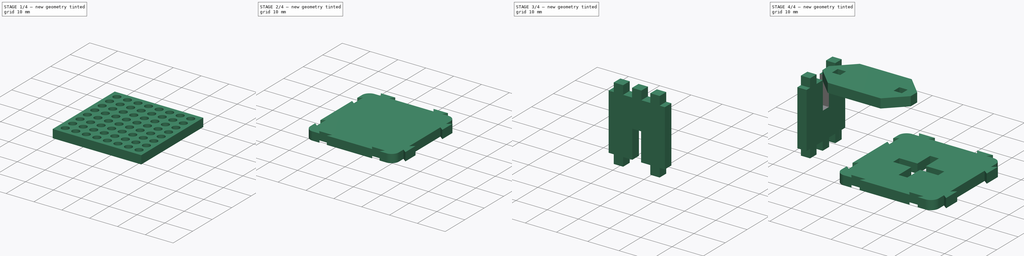
[diagram: build sequence overview — one tinted view per stage of 4, left to right]
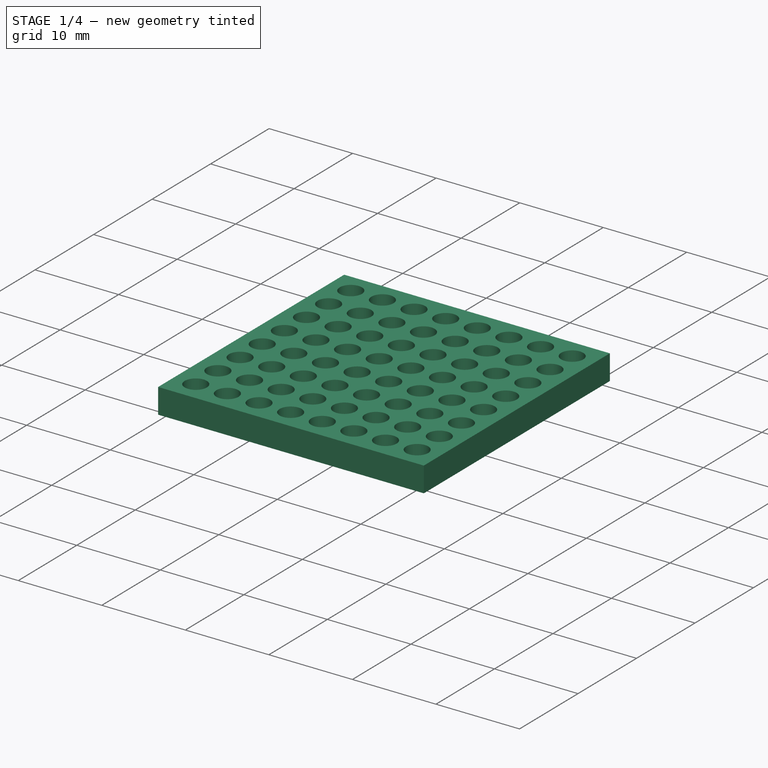
[diagram: stage 1 of 4 — iso view after this stage's code; geometry added in this stage tinted green]
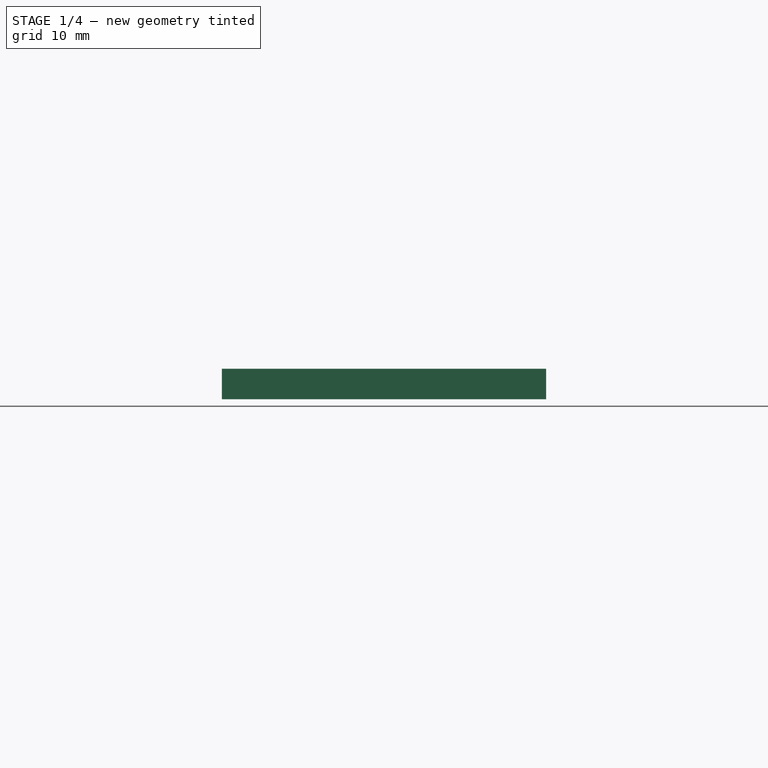
[diagram: stage 1 of 4 — front view after this stage's code; geometry added in this stage tinted green]
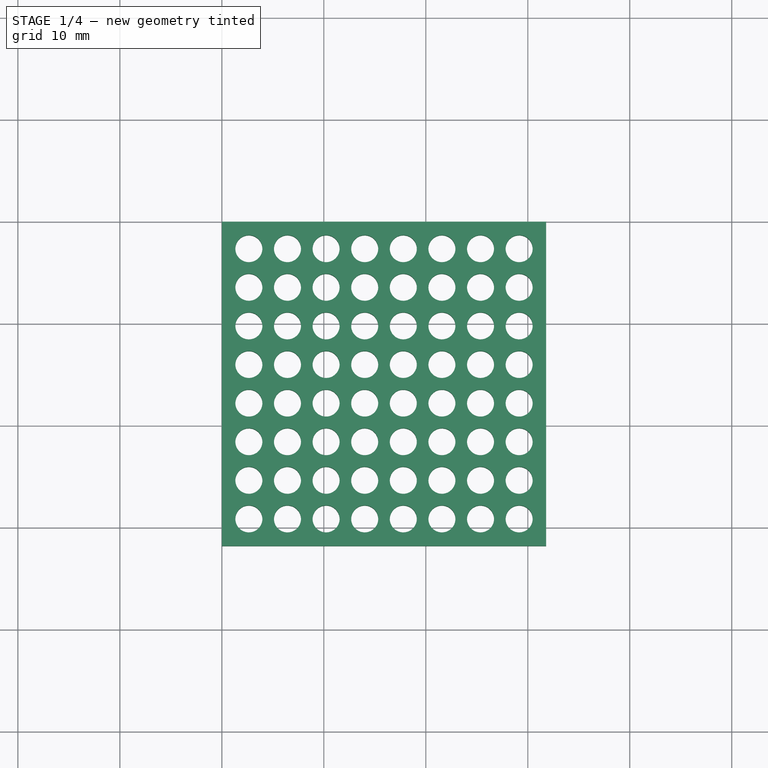
[diagram: stage 1 of 4 — top view after this stage's code; geometry added in this stage tinted green]
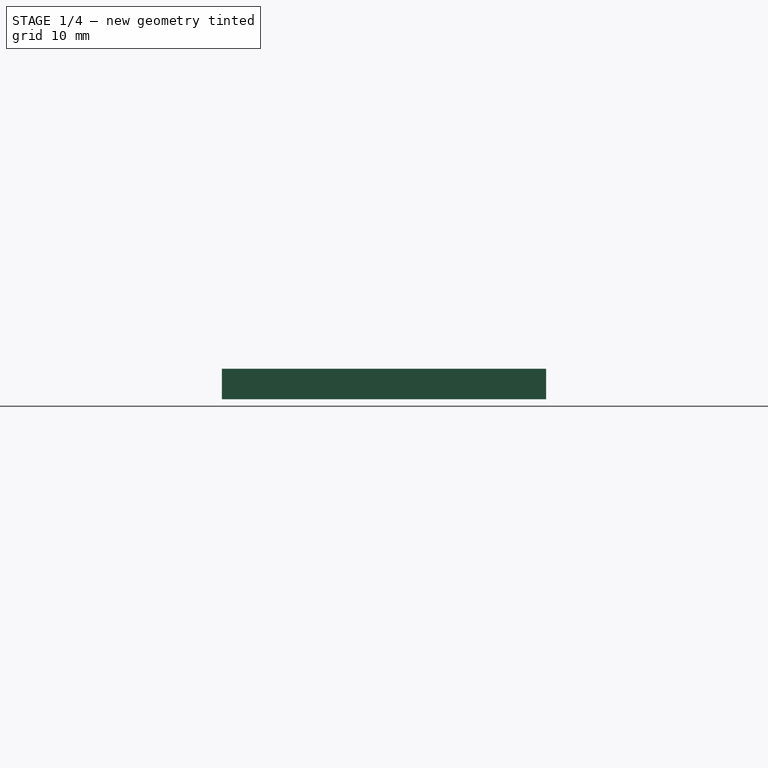
[diagram: stage 1 of 4 — right view after this stage's code; geometry added in this stage tinted green]
FCSTD DOCUMENT  (FreeCAD 2022.709R28846 (Git))
Label: modular_stamp_base_v3
License: Other
LicenseURL: https://ohwr.org/project/cernohl/wikis/Documents/CERN-OHL-version-2
objects: Sketcher::SketchObject×6, PartDesign::SubShapeBinder×5, PartDesign::Pad×4, PartDesign::Body×4, Part::Part2DObjectPython×4, PartDesign::Pocket×2, PartDesign::LinearPattern×2, PartDesign::Fillet×2, Part::FeaturePython×2, PartDesign::MultiTransform×1, Spreadsheet::Sheet×1
note: 54 computed .brp shape members not serialized (recipe doc carries the construction recipe); baked Part::Feature solids carry a one-line shape summary decoded from their .brp

FEATURE [Sketcher::SketchObject] Sketch
  ArcFitTolerance = 0
  AttachmentSupport = -> [XY_Plane]
  FullyConstrained = true
  MapMode = 5
  Support = -> [XY_Plane]
  TreeRank = 0
  expr: Constraints[10] = Spreadsheet.stamp_size
  sketch-geometry (4):
    g0: LineSegment StartX=0 StartY=0 StartZ=0 EndX=31.8 EndY=0 EndZ=0
    g1: LineSegment StartX=31.8 StartY=0 StartZ=0 EndX=31.8 EndY=-31.8 EndZ=0
    g2: LineSegment StartX=31.8 StartY=-31.8 StartZ=0 EndX=0 EndY=-31.8 EndZ=0
    g3: LineSegment StartX=0 StartY=-31.8 StartZ=0 EndX=0 EndY=0 EndZ=0
  constraints (11):
    c: Coincident(g0,g1)
    c: Coincident(g1,g2)
    c: Coincident(g2,g3)
    c: Coincident(g3,g0)
    c: Horizontal(g0)
    c: Horizontal(g2)
    c: Vertical(g1)
    c: Vertical(g3)
    c: Equal(g0,g3)
    c: Coincident(g0,g-1)
    c: DistanceX(g0,g0) = 31.8
FEATURE [PartDesign::Pad] Pad
  ClaimChildren = false
  Direction = (1,1,1)
  Fit = 0
  FitJoin = 0
  InnerFit = 0
  InnerFitJoin = 0
  InnerTaperAngle = 0
  InnerTaperAngleRev = 0
  Length = 3
  Length2 = 100
  NewSolid = false
  Profile = -> Sketch
  Suppress = false
  TreeRank = 0
  Type = 0
  _ProfileBasedVersion = 0
FEATURE [Sketcher::SketchObject] Sketch001
  ArcFitTolerance = 0
  AttachmentSupport = -> [Pad]
  FullyConstrained = true
  MapMode = 5
  Placement = pos=(0,0,3) rot=(0,0,1;0rad)
  Support = -> [Pad]
  TreeRank = 0
  expr: Constraints[17] = Spreadsheet.hole_dia / 2
  expr: Constraints[9] = Spreadsheet.hole_dia
  sketch-geometry (7):
    g0: LineSegment [constr] StartX=1.325 StartY=-1.325 StartZ=0 EndX=3.975 EndY=-1.325 EndZ=0
    g1: LineSegment [constr] StartX=3.975 StartY=-1.325 StartZ=0 EndX=3.975 EndY=-3.975 EndZ=0
    g2: LineSegment [constr] StartX=3.975 StartY=-3.975 StartZ=0 EndX=1.325 EndY=-3.975 EndZ=0
    g3: LineSegment [constr] StartX=1.325 StartY=-3.975 StartZ=0 EndX=1.325 EndY=-1.325 EndZ=0
    g4: LineSegment [constr] StartX=1.325 StartY=-1.325 StartZ=0 EndX=0 EndY=-1.325 EndZ=0
    g5: LineSegment [constr] StartX=1.325 StartY=-1.325 StartZ=0 EndX=1.325 EndY=0 EndZ=0
    g6: Circle CenterX=2.65 CenterY=-2.65 CenterZ=0 NormalX=0 NormalY=0 NormalZ=1 AngleXU=0 Radius=1.325
  constraints (21):
    c: Coincident(g0,g1)
    c: Coincident(g1,g2)
    c: Coincident(g2,g3)
    c: Coincident(g3,g0)
    c: Horizontal(g0)
    c: Horizontal(g2)
    c: Vertical(g1)
    c: Vertical(g3)
    c: Equal(g3,g0)
    c: DistanceX(g0,g0) = 2.65
    c: Coincident(g4,g0)
    c: PointOnObject(g4,g-2)
    c: Horizontal(g4)
    c: Coincident(g5,g0)
    c: PointOnObject(g5,g-1)
    c: Vertical(g5)
    c: Equal(g5,g4)
    c: DistanceX(g4,g4) = 1.325
    c: Tangent(g6,g3)
    c: Tangent(g6,g2)
    c: Tangent(g6,g1)
FEATURE [PartDesign::Pocket] Pocket
  BaseFeature = -> Pad
  ClaimChildren = false
  Fit = 0
  FitJoin = 0
  InnerFit = 0
  InnerFitJoin = 0
  InnerTaperAngle = 0
  InnerTaperAngleRev = 0
  Length = 5
  Length2 = 100
  NewSolid = false
  Profile = -> Sketch001
  Suppress = false
  TreeRank = 0
  Type = 1
  _ProfileBasedVersion = 0
FEATURE [PartDesign::LinearPattern] LinearPattern
  CopyShape = true
  Direction = -> Sketch001 [H_Axis]
  Length = 26.5
  NewSolid = false
  Occurrences = 8
  ParallelTransform = true
  SubTransform = true
  Suppress = false
  TreeRank = 0
  expr: Length = Spreadsheet.number_of_occurrences
FEATURE [PartDesign::LinearPattern] LinearPattern001
  CopyShape = true
  Direction = -> Sketch001 [V_Axis]
  Length = 26.5
  NewSolid = false
  Occurrences = 8
  ParallelTransform = true
  Reversed = true
  SubTransform = true
  Suppress = false
  TreeRank = 0
  expr: Length = Spreadsheet.number_of_occurrences
FEATURE [PartDesign::MultiTransform] MultiTransform
  BaseFeature = -> Pocket
  CopyShape = true
  NewSolid = false
  OriginalSubs = -> [Pocket]
  Originals = -> [Pocket]
  ParallelTransform = true
  SubTransform = true
  Suppress = false
  Transformations = -> [LinearPattern,LinearPattern001]
  TreeRank = 0
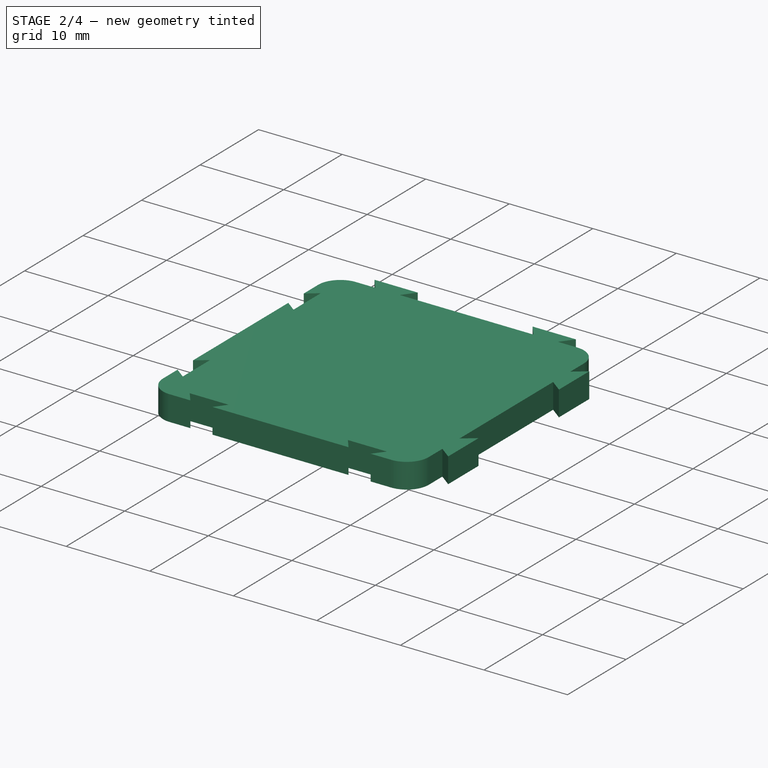
[diagram: stage 2 of 4 — iso view after this stage's code; geometry added in this stage tinted green]
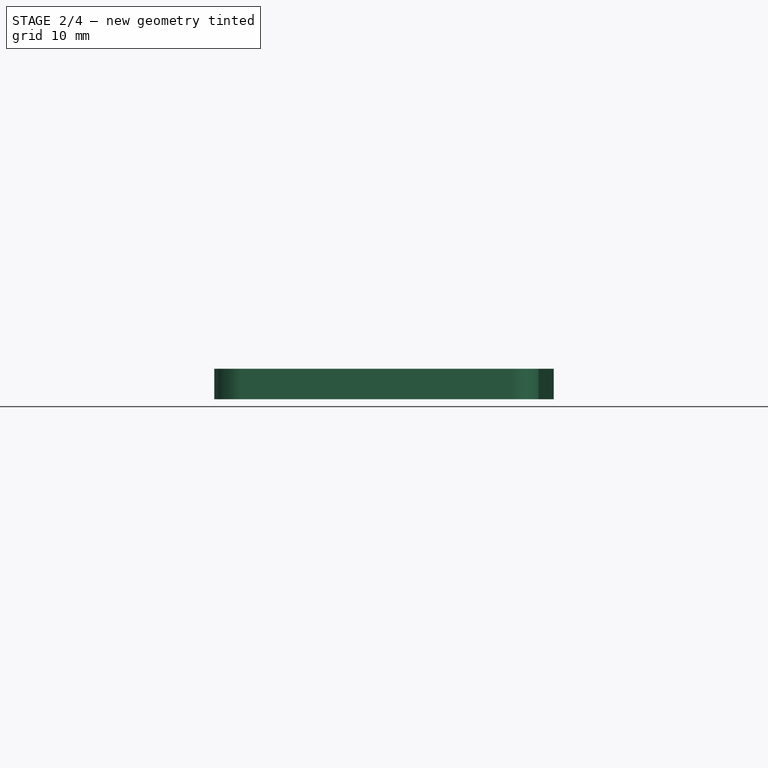
[diagram: stage 2 of 4 — front view after this stage's code; geometry added in this stage tinted green]
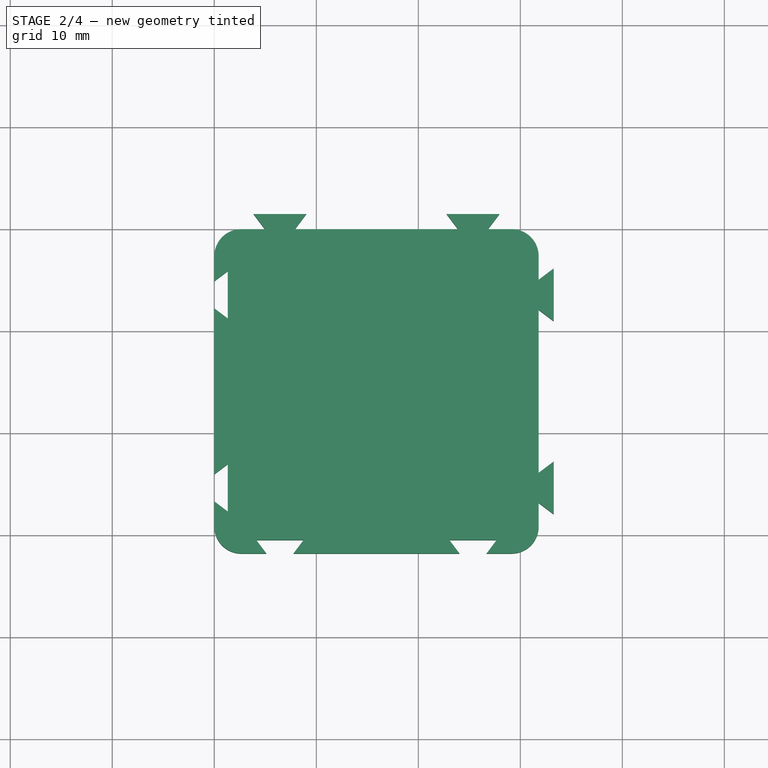
[diagram: stage 2 of 4 — top view after this stage's code; geometry added in this stage tinted green]
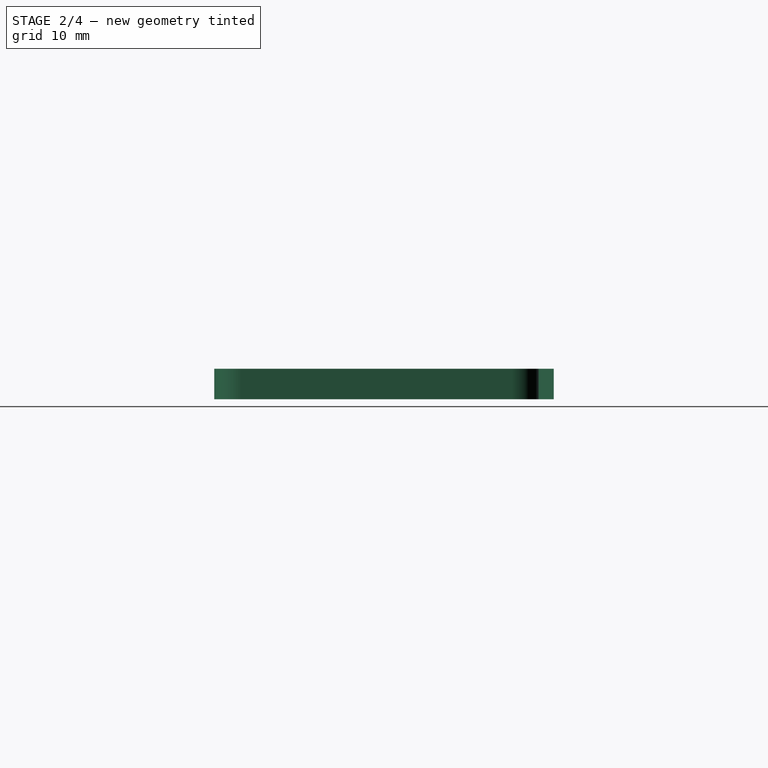
[diagram: stage 2 of 4 — right view after this stage's code; geometry added in this stage tinted green]
FEATURE [Spreadsheet::Sheet] Spreadsheet
  PythonMode = false
  ShowCells = 0
  TreeRank = 0
  cells = A1=hole diameter; B1(hole_dia)==2.65mm; A2=number of pixel columns; B2(pixel_col)=8; A3=number of pixel rows; B3(pixel_row)=8; A4=stamp_size; B4(stamp_size)==B1 * B2 + B1 * B2 / 2; A5=number_of_occurrences; B5(number_of_occurrences)==B4 - B1 * 2; A6=laser_kerf; B6(laser_kerf)==0.15mm; A7=acrylic_thickness; B7(acrylic_thickness)==3mm; A8=slot_width; B8(slot_width)==B7 - B6
FEATURE [PartDesign::SubShapeBinder] Binder
  BindCopyOnChange = 0
  BindMode = 0
  ClaimChildren = false
  Context = -> Body001 [Binder.]
  FillStyle = 0
  Fuse = false
  MakeFace = true
  OffsetFill = false
  OffsetIntersection = false
  OffsetJoinType = 0
  OffsetOpenResult = false
  PartialLoad = false
  Refine = true
  Relative = true
  Support = -> [Body]
  TreeRank = 0
  _Version = 2
FEATURE [Sketcher::SketchObject] Sketch002
  ArcFitTolerance = 0
  AttachmentSupport = -> [Binder]
  ExternalGeometry = -> [Binder]
  FullyConstrained = true
  MapMode = 5
  Placement = pos=(0,0,3) rot=(0,0,1;0rad)
  Support = -> [Binder]
  TreeRank = 0
  expr: Constraints[121] = Spreadsheet.hole_dia / 2 + Spreadsheet.laser_kerf
  expr: Constraints[124] = Spreadsheet.hole_dia / 2 + Spreadsheet.laser_kerf
  expr: Constraints[46] = Spreadsheet.hole_dia + 2mm
  expr: Constraints[47] = Spreadsheet.hole_dia
  expr: Constraints[48] = Spreadsheet.hole_dia / 2
  expr: Constraints[90] = Spreadsheet.hole_dia + Spreadsheet.laser_kerf * 2
  sketch-geometry (44):
    g0: LineSegment StartX=31.8 StartY=-31.8 StartZ=0 EndX=26.6893 EndY=-31.8 EndZ=0
    g1: LineSegment StartX=26.6893 StartY=-31.8 StartZ=0 EndX=27.6893 EndY=-30.475 EndZ=0
    g2: LineSegment StartX=27.6893 StartY=-30.475 StartZ=0 EndX=23.0393 EndY=-30.475 EndZ=0
    g3: LineSegment StartX=23.0393 StartY=-30.475 StartZ=0 EndX=24.0393 EndY=-31.8 EndZ=0
    g4: LineSegment StartX=24.0393 StartY=-31.8 StartZ=0 EndX=7.76071 EndY=-31.8 EndZ=0
    g5: LineSegment StartX=7.76071 StartY=-31.8 StartZ=0 EndX=8.76071 EndY=-30.475 EndZ=0
    g6: LineSegment StartX=8.76071 StartY=-30.475 StartZ=0 EndX=4.11071 EndY=-30.475 EndZ=0
    g7: LineSegment StartX=4.11071 StartY=-30.475 StartZ=0 EndX=5.11071 EndY=-31.8 EndZ=0
    g8: LineSegment StartX=5.11071 StartY=-31.8 StartZ=0 EndX=0 EndY=-31.8 EndZ=0
    g9: LineSegment StartX=0 StartY=-31.8 StartZ=0 EndX=0 EndY=-26.6893 EndZ=0
    g10: LineSegment StartX=0 StartY=-26.6893 StartZ=0 EndX=1.325 EndY=-27.6893 EndZ=0
    g11: LineSegment StartX=1.325 StartY=-27.6893 StartZ=0 EndX=1.325 EndY=-23.0393 EndZ=0
    g12: LineSegment StartX=1.325 StartY=-23.0393 StartZ=0 EndX=0 EndY=-24.0393 EndZ=0
    g13: LineSegment StartX=0 StartY=-24.0393 StartZ=0 EndX=0 EndY=-7.76071 EndZ=0
    g14: LineSegment StartX=0 StartY=-7.76071 StartZ=0 EndX=1.325 EndY=-8.76071 EndZ=0
    g15: LineSegment StartX=1.325 StartY=-8.76071 StartZ=0 EndX=1.325 EndY=-4.11071 EndZ=0
    g16: LineSegment StartX=1.325 StartY=-4.11071 StartZ=0 EndX=0 EndY=-5.11071 EndZ=0
    g17: LineSegment StartX=0 StartY=-5.11071 StartZ=0 EndX=0 EndY=0 EndZ=0
    g18: LineSegment [constr] StartX=2.65 StartY=-6.43571 StartZ=0 EndX=0 EndY=-6.43571 EndZ=0
    g19: LineSegment [constr] StartX=2.65 StartY=-25.3643 StartZ=0 EndX=0 EndY=-25.3643 EndZ=0
    g20: LineSegment [constr] StartX=6.43571 StartY=-29.15 StartZ=0 EndX=6.43571 EndY=-31.8 EndZ=0
    g21: LineSegment [constr] StartX=6.43571 StartY=-2.65 StartZ=0 EndX=6.43571 EndY=0 EndZ=0
    g22: LineSegment [constr] StartX=25.3643 StartY=-2.65 StartZ=0 EndX=25.3643 EndY=0 EndZ=0
    g23: LineSegment [constr] StartX=29.15 StartY=-6.43571 StartZ=0 EndX=31.8 EndY=-6.43571 EndZ=0
    g24: LineSegment [constr] StartX=29.15 StartY=-25.3643 StartZ=0 EndX=31.8 EndY=-25.3643 EndZ=0
    g25: LineSegment [constr] StartX=25.3643 StartY=-29.15 StartZ=0 EndX=25.3643 EndY=-31.8 EndZ=0
    g26: LineSegment StartX=0 StartY=0 StartZ=0 EndX=4.96071 EndY=0 EndZ=0
    g27: LineSegment StartX=4.96071 StartY=0 StartZ=0 EndX=3.84751 EndY=1.475 EndZ=0
    g28: LineSegment StartX=3.84751 StartY=1.475 StartZ=0 EndX=9.02392 EndY=1.475 EndZ=0
    g29: LineSegment StartX=9.02392 StartY=1.475 StartZ=0 EndX=7.91071 EndY=0 EndZ=0
    g30: LineSegment StartX=7.91071 StartY=0 StartZ=0 EndX=23.8893 EndY=0 EndZ=0
    g31: LineSegment StartX=23.8893 StartY=0 StartZ=0 EndX=22.7761 EndY=1.475 EndZ=0
    g32: LineSegment StartX=22.7761 StartY=1.475 StartZ=0 EndX=27.9525 EndY=1.475 EndZ=0
    g33: LineSegment StartX=27.9525 StartY=1.475 StartZ=0 EndX=26.8393 EndY=0 EndZ=0
    g34: LineSegment StartX=26.8393 StartY=0 StartZ=0 EndX=31.8 EndY=0 EndZ=0
    g35: LineSegment StartX=31.8 StartY=0 StartZ=0 EndX=31.8 EndY=-4.96071 EndZ=0
    g36: LineSegment StartX=31.8 StartY=-4.96071 StartZ=0 EndX=33.275 EndY=-3.84751 EndZ=0
    g37: LineSegment StartX=33.275 StartY=-3.84751 StartZ=0 EndX=33.275 EndY=-9.02392 EndZ=0
    g38: LineSegment StartX=33.275 StartY=-9.02392 StartZ=0 EndX=31.8 EndY=-7.91071 EndZ=0
    g39: LineSegment StartX=31.8 StartY=-7.91071 StartZ=0 EndX=31.8 EndY=-23.8893 EndZ=0
    g40: LineSegment StartX=31.8 StartY=-23.8893 StartZ=0 EndX=33.275 EndY=-22.7761 EndZ=0
    g41: LineSegment StartX=33.275 StartY=-22.7761 StartZ=0 EndX=33.275 EndY=-27.9525 EndZ=0
    g42: LineSegment StartX=33.275 StartY=-27.9525 StartZ=0 EndX=31.8 EndY=-26.8393 EndZ=0
    g43: LineSegment StartX=31.8 StartY=-26.8393 StartZ=0 EndX=31.8 EndY=-31.8 EndZ=0
  constraints (125):
    c: Coincident(g0,g1)
    c: Coincident(g1,g2)
    c: Horizontal(g2)
    c: Coincident(g2,g3)
    c: Coincident(g3,g4)
    c: Coincident(g4,g5)
    c: Coincident(g5,g6)
    c: Horizontal(g6)
    c: Coincident(g6,g7)
    c: Coincident(g7,g8)
    c: Coincident(g8,g9)
    c: PointOnObject(g9,g-2)
    c: Coincident(g9,g10)
    c: Coincident(g10,g11)
    c: Vertical(g11)
    c: Coincident(g11,g12)
    c: PointOnObject(g12,g-2)
    c: Coincident(g12,g13)
    c: PointOnObject(g13,g-2)
    c: Coincident(g13,g14)
    c: Coincident(g14,g15)
    c: Vertical(g15)
    c: Coincident(g15,g16)
    c: PointOnObject(g16,g-2)
    c: Coincident(g16,g17)
    c: Equal(g0,g8)
    c: Equal(g8,g9)
    c: Equal(g13,g4)
    c: Equal(g11,g6)
    c: Equal(g6,g2)
    c: Equal(g16,g14)
    c: Equal(g14,g12)
    c: Equal(g12,g10)
    c: Equal(g10,g7)
    c: Equal(g7,g5)
    c: Equal(g5,g3)
    c: Equal(g3,g1)
    c: Vertical(g14,g11)
    c: Horizontal(g5,g2)
    c: Horizontal(g8)
    c: Horizontal(g4)
    c: Horizontal(g0)
    c: Vertical(g9)
    c: PointOnObject(g-5,g0)
    c: PointOnObject(g-5,g8)
    c: PointOnObject(g4,g-5)
    c: Distance(g15) = 4.65
    c: Distance(g16,g13) = 2.65
    c: Distance(g16,g15) = 1.325
    c: Coincident(g18,g-7)
    c: Horizontal(g18)
    c: Symmetric(g16,g13,g18)
    c: Vertical(g17)
    c: Horizontal(g17,g-3)
    c: Coincident(g19,g-8)
    c: Horizontal(g19)
    c: Symmetric(g9,g12,g19)
    c: Equal(g9,g17)
    c: Coincident(g20,g-9)
    c: Vertical(g20)
    c: Symmetric(g7,g4,g20)
    c: Coincident(g21,g-14)
    c: PointOnObject(g21,g-3)
    c: Vertical(g21)
    c: Coincident(g22,g-13)
    c: PointOnObject(g22,g-3)
    c: Vertical(g22)
    c: Coincident(g23,g-12)
    c: PointOnObject(g23,g-4)
    c: Horizontal(g23)
    c: Coincident(g24,g-11)
    c: PointOnObject(g24,g-4)
    c: Horizontal(g24)
    c: Coincident(g25,g-10)
    c: PointOnObject(g25,g-5)
    c: Vertical(g25)
    c: Coincident(g26,g17)
    c: PointOnObject(g26,g-3)
    c: Coincident(g26,g27)
    c: Coincident(g27,g28)
    c: Horizontal(g28)
    c: Coincident(g28,g29)
    c: Coincident(g29,g30)
    c: PointOnObject(g30,g-3)
    c: Coincident(g30,g31)
    c: Coincident(g31,g32)
    c: Horizontal(g32)
    c: Coincident(g32,g33)
    c: Coincident(g33,g34)
    c: PointOnObject(g34,g-1)
    c: Distance(g26,g29) = 2.95
    c: Equal(g29,g27)
    c: Symmetric(g26,g29,g21)
    c: Equal(g26,g34)
    c: Equal(g33,g31)
    c: Symmetric(g30,g33,g22)
    c: Equal(g32,g28)
    c: Horizontal(g31,g28)
    c: Vertical(g-4,g34)
    c: Coincident(g34,g35)
    c: PointOnObject(g35,g-4)
    c: Coincident(g35,g36)
    c: Coincident(g36,g37)
    c: Vertical(g37)
    c: Coincident(g37,g38)
    c: Coincident(g38,g39)
    c: PointOnObject(g39,g-4)
    c: Coincident(g39,g40)
    c: Coincident(g40,g41)
    c: Vertical(g41)
    c: Coincident(g41,g42)
    c: Coincident(g42,g43)
    c: Coincident(g43,g0)
    c: Equal(g35,g34)
    c: Symmetric(g38,g35,g23)
    c: Symmetric(g39,g42,g24)
    c: Equal(g43,g35)
    c: Equal(g28,g37)
    c: Equal(g37,g41)
    c: Vertical(g37,g40)
    c: Parallel(g27,g7)
    c: Distance(g26,g28) = 1.475
    c: Equal(g36,g38)
    c: Equal(g40,g42)
    c: Distance(g35,g37) = 1.475
FEATURE [PartDesign::Pad] Pad001
  ClaimChildren = false
  Direction = (1,1,1)
  Fit = 0
  FitJoin = 0
  InnerFit = 0
  InnerFitJoin = 0
  InnerTaperAngle = 0
  InnerTaperAngleRev = 0
  Length = 3
  Length2 = 100
  NewSolid = false
  Profile = -> Sketch002
  Suppress = false
  TreeRank = 0
  Type = 0
  _ProfileBasedVersion = 0
FEATURE [PartDesign::Fillet] Fillet
  Base = -> MultiTransform [Edge1,Edge2,Edge5,Edge8]
  BaseFeature = -> MultiTransform
  NewSolid = false
  Radius = 2.65
  SupportTransform = false
  Suppress = false
  TreeRank = 0
  expr: Radius = Spreadsheet.hole_dia
FEATURE [PartDesign::Body] Body  label="Stamp_Base"
  AutoGroupSolids = false
  ClaimAllChildren = false
  ExportMode = 0
  Group = -> [Sketch,Pad,Sketch001,Pocket,MultiTransform,LinearPattern,LinearPattern001,Fillet]
  Origin = -> Origin
  Tip = -> Fillet
  TreeRank = 0
  _ExportChildren = -> [Pad,Pocket,MultiTransform,Fillet]
  _GroupVersion = 1
FEATURE [PartDesign::Fillet] Fillet001
  Base = -> Pad001 [Edge53,Edge80,Edge1,Edge26]
  BaseFeature = -> Pad001
  NewSolid = false
  Radius = 2.65
  SupportTransform = false
  Suppress = false
  TreeRank = 0
  expr: Radius = Spreadsheet.hole_dia
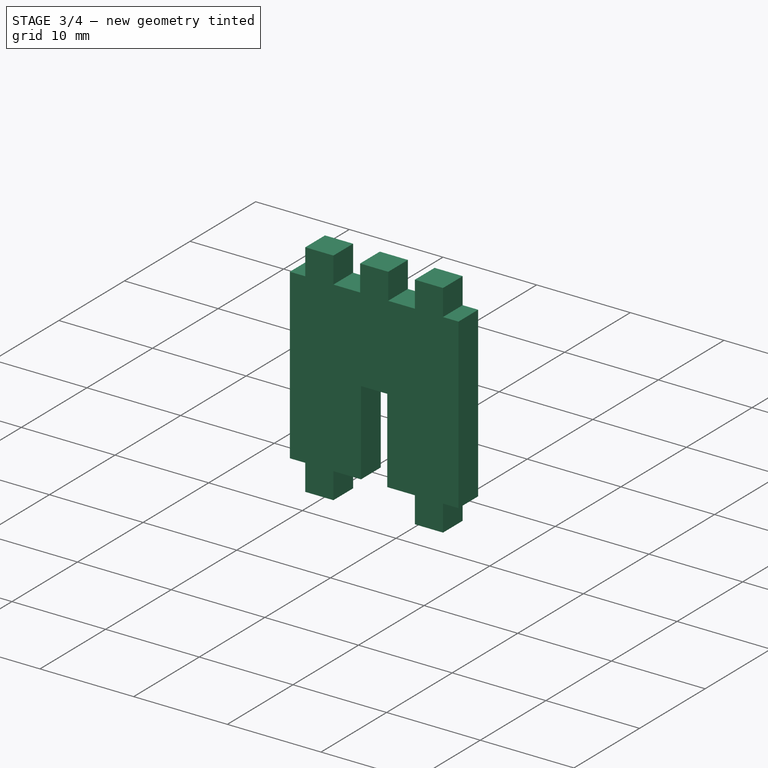
[diagram: stage 3 of 4 — iso view after this stage's code; geometry added in this stage tinted green]
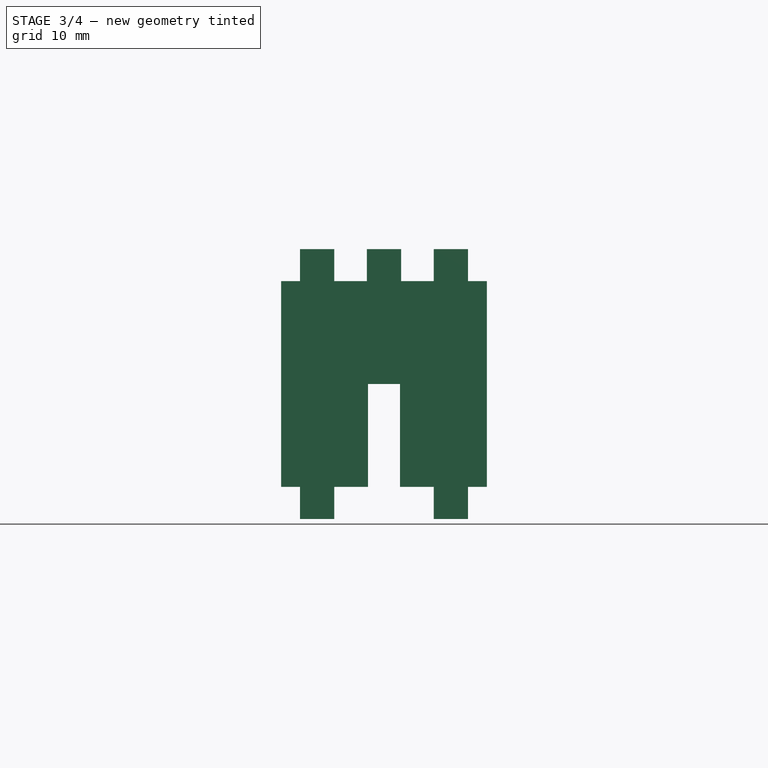
[diagram: stage 3 of 4 — front view after this stage's code; geometry added in this stage tinted green]
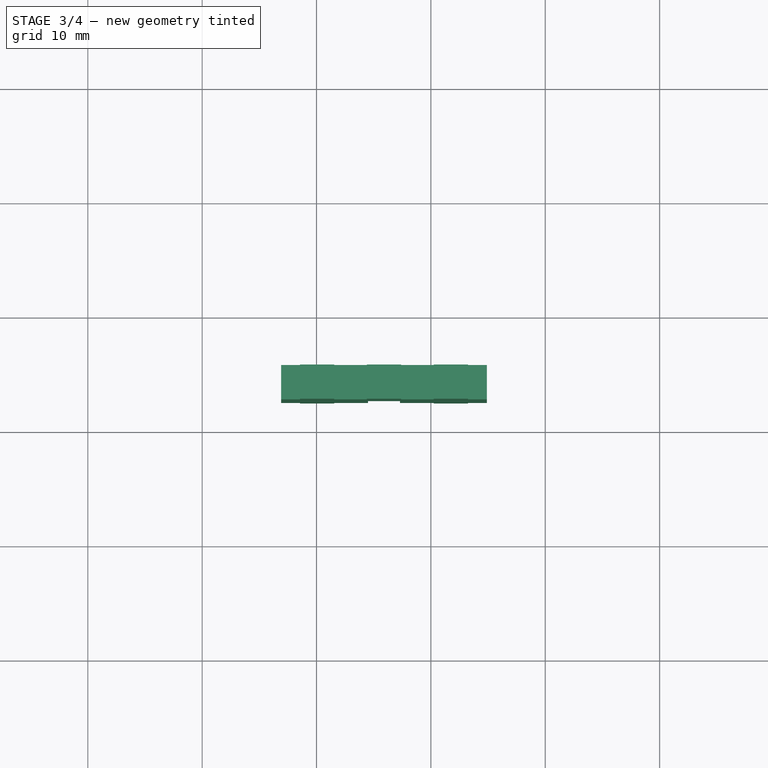
[diagram: stage 3 of 4 — top view after this stage's code; geometry added in this stage tinted green]
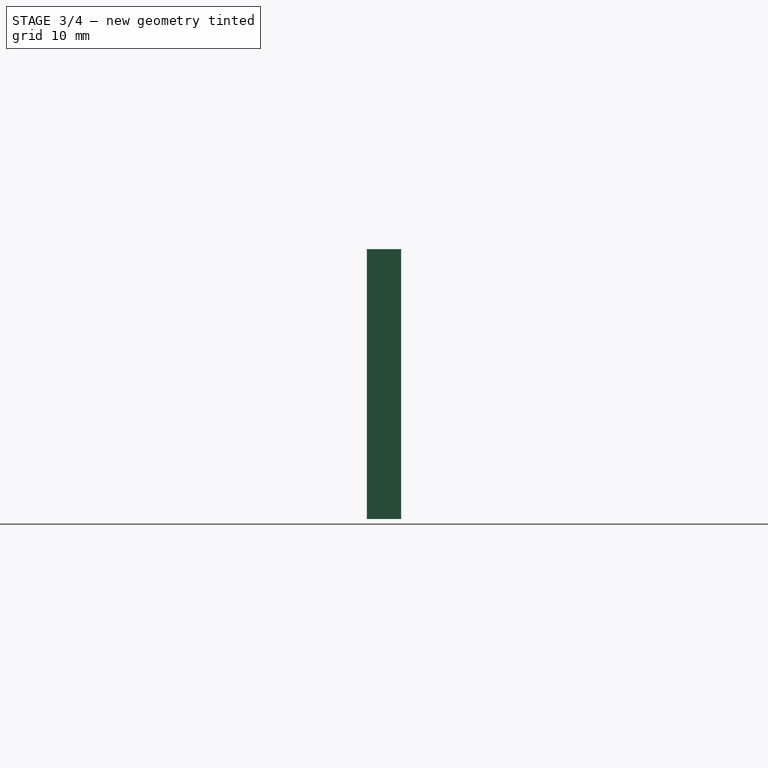
[diagram: stage 3 of 4 — right view after this stage's code; geometry added in this stage tinted green]
FEATURE [Part::Part2DObjectPython] Shape2DView  # Draft 2D object (typed FeaturePython)
  Base = -> Body
  FuseArch = false
  HiddenLines = false
  InPlace = true
  Projection = (0,0,1)
  ProjectionMode = 0
  SegmentLength = 0.05
  Tessellation = false
  TreeRank = 0
  VisibleOnly = false
FEATURE [Sketcher::SketchObject] Sketch003
  ArcFitTolerance = 0
  AttachmentSupport = -> [Fillet001]
  ExternalGeometry = -> [Fillet001]
  FullyConstrained = true
  MapMode = 5
  Placement = pos=(0,0,6) rot=(0,0,1;0rad)
  Support = -> [Fillet001]
  TreeRank = 0
  expr: Constraints[41] = Spreadsheet.acrylic_thickness - Spreadsheet.laser_kerf
  expr: Constraints[42] = Spreadsheet.acrylic_thickness * 3 + Spreadsheet.slot_width * 2
  sketch-geometry (16):
    g0: LineSegment StartX=8.55 StartY=-14.475 StartZ=0 EndX=14.475 EndY=-14.475 EndZ=0
    g1: LineSegment StartX=23.25 StartY=-14.475 StartZ=0 EndX=23.25 EndY=-17.325 EndZ=0
    g2: LineSegment StartX=23.25 StartY=-17.325 StartZ=0 EndX=17.325 EndY=-17.325 EndZ=0
    g3: LineSegment StartX=8.55 StartY=-17.325 StartZ=0 EndX=8.55 EndY=-14.475 EndZ=0
    g4: LineSegment StartX=14.475 StartY=-8.55 StartZ=0 EndX=17.325 EndY=-8.55 EndZ=0
    g5: LineSegment StartX=17.325 StartY=-8.55 StartZ=0 EndX=17.325 EndY=-14.475 EndZ=0
    g6: LineSegment StartX=17.325 StartY=-23.25 StartZ=0 EndX=14.475 EndY=-23.25 EndZ=0
    g7: LineSegment StartX=14.475 StartY=-23.25 StartZ=0 EndX=14.475 EndY=-17.325 EndZ=0
    g8: LineSegment StartX=17.325 StartY=-14.475 StartZ=0 EndX=23.25 EndY=-14.475 EndZ=0
    g9: LineSegment StartX=14.475 StartY=-14.475 StartZ=0 EndX=14.475 EndY=-8.55 EndZ=0
    g10: LineSegment StartX=14.475 StartY=-17.325 StartZ=0 EndX=8.55 EndY=-17.325 EndZ=0
    g11: LineSegment StartX=17.325 StartY=-17.325 StartZ=0 EndX=17.325 EndY=-23.25 EndZ=0
    g12: LineSegment [constr] StartX=0 StartY=-15.9 StartZ=0 EndX=15.9 EndY=-15.9 EndZ=0
    g13: LineSegment [constr] StartX=15.9 StartY=-15.9 StartZ=0 EndX=31.8 EndY=-15.9 EndZ=0
    g14: LineSegment [constr] StartX=15.9 StartY=-15.9 StartZ=0 EndX=15.9 EndY=0 EndZ=0
    g15: LineSegment [constr] StartX=15.9 StartY=-15.9 StartZ=0 EndX=15.9 EndY=-31.8 EndZ=0
  constraints (44):
    c: Coincident(g8,g1)
    c: Coincident(g1,g2)
    c: Coincident(g10,g3)
    c: Coincident(g3,g0)
    c: Horizontal(g0)
    c: Horizontal(g2)
    c: Vertical(g1)
    c: Vertical(g3)
    c: Coincident(g4,g5)
    c: Coincident(g11,g6)
    c: Coincident(g6,g7)
    c: Coincident(g9,g4)
    c: Horizontal(g4)
    c: Horizontal(g6)
    c: Vertical(g5)
    c: Vertical(g7)
    c: Tangent(g0,g8)
    c: Coincident(g9,g0)
    c: Tangent(g7,g9)
    c: Coincident(g10,g7)
    c: Tangent(g2,g10)
    c: Coincident(g5,g8)
    c: Coincident(g11,g2)
    c: Tangent(g5,g11)
    c: Equal(g0,g7)
    c: Equal(g7,g2)
    c: Equal(g2,g5)
    c: Equal(g3,g4)
    c: PointOnObject(g12,g-3)
    c: Horizontal(g12)
    c: Coincident(g13,g12)
    c: PointOnObject(g13,g-4)
    c: Horizontal(g13)
    c: Coincident(g14,g12)
    c: PointOnObject(g14,g-5)
    c: Vertical(g14)
    c: Coincident(g15,g12)
    c: PointOnObject(g15,g-6)
    c: Vertical(g15)
    c: Equal(g12,g15)
    c: Equal(g15,g13)
    c: DistanceX(g4,g4) = 2.85
    c: DistanceX(g3,g1) = 14.7
    c: Symmetric(g0,g2,g12)
FEATURE [PartDesign::Pocket] Pocket001
  BaseFeature = -> Fillet001
  ClaimChildren = false
  Fit = 0
  FitJoin = 0
  InnerFit = 0
  InnerFitJoin = 0
  InnerTaperAngle = 0
  InnerTaperAngleRev = 0
  Length = 5
  Length2 = 100
  NewSolid = false
  Profile = -> Sketch003
  Suppress = false
  TreeRank = 0
  Type = 1
  _ProfileBasedVersion = 0
FEATURE [PartDesign::SubShapeBinder] Binder001
  BindCopyOnChange = 0
  BindMode = 0
  ClaimChildren = false
  Context = -> Body002 [Binder001.]
  FillStyle = 0
  Fuse = false
  MakeFace = true
  OffsetFill = false
  OffsetIntersection = false
  OffsetJoinType = 0
  OffsetOpenResult = false
  PartialLoad = false
  Refine = true
  Relative = true
  Support = -> [Body001]
  TreeRank = 0
  _Version = 2
FEATURE [Sketcher::SketchObject] Sketch004
  ArcFitTolerance = 0
  AttachmentSupport = -> [Binder001]
  ExternalGeometry = -> [Binder001]
  FullyConstrained = true
  MapMode = 5
  Placement = pos=(0,-14.475,0) rot=(1,0,0;1.5708rad)
  Support = -> [Binder001]
  TreeRank = 0
  expr: Constraints[67] = Spreadsheet.slot_width
  expr: Constraints[68] = Spreadsheet.acrylic_thickness
  expr: Constraints[72] = Spreadsheet.slot_width - 0.05mm
  expr: Constraints[85] = Spreadsheet.slot_width - 0.05mm
  sketch-geometry (29):
    g0: LineSegment StartX=6.9 StartY=6 StartZ=0 EndX=6.9 EndY=24 EndZ=0
    g1: LineSegment StartX=6.9 StartY=24 StartZ=0 EndX=8.55 EndY=24 EndZ=0
    g2: LineSegment StartX=8.55 StartY=24 StartZ=0 EndX=8.55 EndY=26.8 EndZ=0
    g3: LineSegment StartX=8.55 StartY=26.8 StartZ=0 EndX=11.55 EndY=26.8 EndZ=0
    g4: LineSegment StartX=11.55 StartY=26.8 StartZ=0 EndX=11.55 EndY=24 EndZ=0
    g5: LineSegment StartX=11.55 StartY=24 StartZ=0 EndX=14.4 EndY=24 EndZ=0
    g6: LineSegment StartX=14.4 StartY=24 StartZ=0 EndX=14.4 EndY=26.8 EndZ=0
    g7: LineSegment StartX=14.4 StartY=26.8 StartZ=0 EndX=17.4 EndY=26.8 EndZ=0
    g8: LineSegment StartX=17.4 StartY=26.8 StartZ=0 EndX=17.4 EndY=24 EndZ=0
    g9: LineSegment StartX=17.4 StartY=24 StartZ=0 EndX=20.25 EndY=24 EndZ=0
    g10: LineSegment StartX=20.25 StartY=24 StartZ=0 EndX=20.25 EndY=26.8 EndZ=0
    g11: LineSegment StartX=20.25 StartY=26.8 StartZ=0 EndX=23.25 EndY=26.8 EndZ=0
    g12: LineSegment StartX=23.25 StartY=26.8 StartZ=0 EndX=23.25 EndY=24 EndZ=0
    g13: LineSegment StartX=23.25 StartY=24 StartZ=0 EndX=24.9 EndY=24 EndZ=0
    g14: LineSegment StartX=24.9 StartY=24 StartZ=0 EndX=24.9 EndY=6 EndZ=0
    g15: LineSegment StartX=24.9 StartY=6 StartZ=0 EndX=23.25 EndY=6 EndZ=0
    g16: LineSegment StartX=23.25 StartY=6 StartZ=0 EndX=23.25 EndY=3.2 EndZ=0
    g17: LineSegment StartX=23.25 StartY=3.2 StartZ=0 EndX=20.25 EndY=3.2 EndZ=0
    g18: LineSegment StartX=20.25 StartY=3.2 StartZ=0 EndX=20.25 EndY=6 EndZ=0
    g19: LineSegment StartX=17.3 StartY=6 StartZ=0 EndX=17.3 EndY=15 EndZ=0
    g20: LineSegment StartX=17.3 StartY=15 StartZ=0 EndX=14.5 EndY=15 EndZ=0
    g21: LineSegment StartX=14.5 StartY=15 StartZ=0 EndX=14.5 EndY=6 EndZ=0
    g22: LineSegment StartX=11.55 StartY=6 StartZ=0 EndX=11.55 EndY=3.2 EndZ=0
    g23: LineSegment StartX=11.55 StartY=3.2 StartZ=0 EndX=8.55 EndY=3.2 EndZ=0
    g24: LineSegment StartX=8.55 StartY=3.2 StartZ=0 EndX=8.55 EndY=6 EndZ=0
    g25: LineSegment StartX=8.55 StartY=6 StartZ=0 EndX=6.9 EndY=6 EndZ=0
    g26: LineSegment [constr] StartX=15.9 StartY=15 StartZ=0 EndX=15.9 EndY=6 EndZ=0
    g27: LineSegment StartX=11.55 StartY=6 StartZ=0 EndX=14.5 EndY=6 EndZ=0
    g28: LineSegment StartX=20.25 StartY=6 StartZ=0 EndX=17.3 EndY=6 EndZ=0
  constraints (87):
    c: Vertical(g0)
    c: Coincident(g0,g1)
    c: Coincident(g1,g2)
    c: Vertical(g2)
    c: Coincident(g2,g3)
    c: Horizontal(g3)
    c: Coincident(g3,g4)
    c: Vertical(g4)
    c: Coincident(g4,g5)
    c: Horizontal(g5)
    c: Coincident(g5,g6)
    c: Vertical(g6)
    c: Coincident(g6,g7)
    c: Horizontal(g7)
    c: Coincident(g7,g8)
    c: Vertical(g8)
    c: Coincident(g8,g9)
    c: Horizontal(g9)
    c: Coincident(g9,g10)
    c: Vertical(g10)
    c: Coincident(g10,g11)
    c: Horizontal(g11)
    c: Coincident(g11,g12)
    c: Vertical(g12)
    c: Coincident(g12,g13)
    c: Coincident(g13,g14)
    c: Vertical(g14)
    c: Coincident(g14,g15)
    c: Coincident(g15,g16)
    c: Vertical(g16)
    c: Coincident(g16,g17)
    c: Coincident(g17,g18)
    c: Vertical(g18)
    c: Vertical(g19)
    c: Coincident(g19,g20)
    c: Horizontal(g20)
    c: Coincident(g20,g21)
    c: Vertical(g21)
    c: Vertical(g22)
    c: Coincident(g22,g23)
    c: Horizontal(g23)
    c: Coincident(g23,g24)
    c: Vertical(g24)
    c: Coincident(g24,g25)
    c: Coincident(g25,g0)
    c: Horizontal(g25)
    c: Horizontal(g17)
    c: Horizontal(g1)
    c: Horizontal(g13)
    c: Horizontal(g15)
    c: Equal(g2,g4)
    c: Equal(g4,g6)
    c: Equal(g6,g8)
    c: Equal(g8,g10)
    c: Equal(g10,g12)
    c: Equal(g12,g16)
    c: Equal(g16,g18)
    c: Equal(g18,g22)
    c: Equal(g22,g24)
    c: Equal(g3,g7)
    c: Equal(g7,g11)
    c: Equal(g11,g17)
    c: Equal(g17,g23)
    c: Equal(g5,g9)
    c: Equal(g1,g13)
    c: Equal(g13,g25)
    c: Equal(g25,g15)
    c: DistanceX(g5,g5) = 2.85
    c: DistanceX(g3,g3) = 3
    c: DistanceX(g0,g13) = 18
    c: DistanceY(g0,g0) = 18
    c: Equal(g0,g14)
    c: DistanceY(g24,g24) = 2.8
    c: DistanceY(g21,g21) = 9
    c: Vertical(g26)
    c: Symmetric(g20,g19,g26)
    c: Symmetric(g-3,g-3,g26)
    c: Horizontal(g21,g-3)
    c: DistanceX(g1,g12) = 14.7
    c: Coincident(g27,g22)
    c: Coincident(g27,g21)
    c: Horizontal(g27)
    c: Coincident(g28,g18)
    c: Coincident(g28,g19)
    c: Horizontal(g28)
    c: DistanceX(g20,g20) = 2.8
    c: Equal(g28,g27)
FEATURE [PartDesign::Pad] Pad002
  ClaimChildren = false
  Direction = (1,1,1)
  Fit = 0
  FitJoin = 0
  InnerFit = 0
  InnerFitJoin = 0
  InnerTaperAngle = 0
  InnerTaperAngleRev = 0
  Length = 3
  Length2 = 100
  NewSolid = false
  Profile = -> Sketch004
  Suppress = false
  TreeRank = 0
  Type = 0
  _ProfileBasedVersion = 0
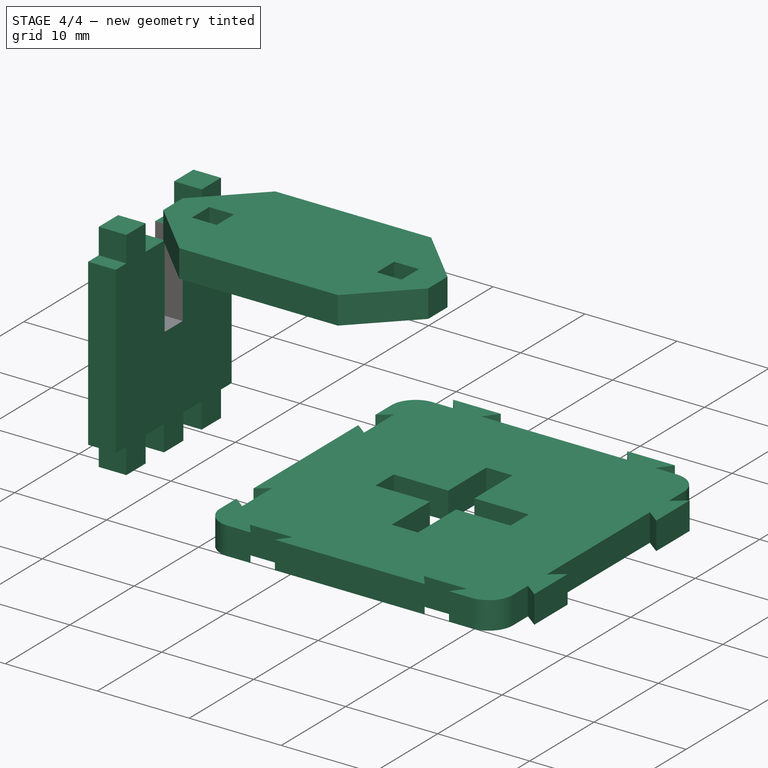
[diagram: stage 4 of 4 — iso view after this stage's code; geometry added in this stage tinted green]
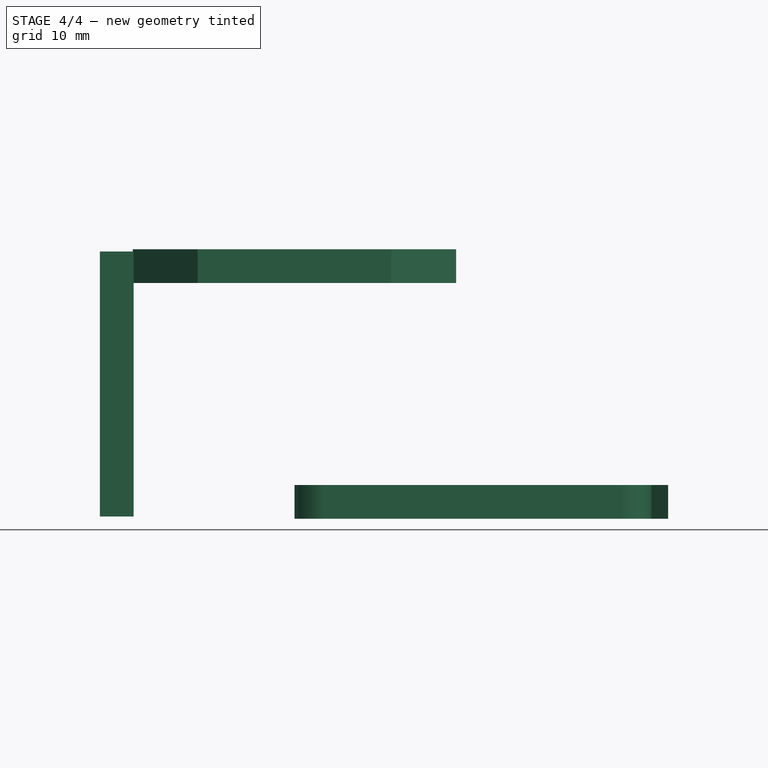
[diagram: stage 4 of 4 — front view after this stage's code; geometry added in this stage tinted green]
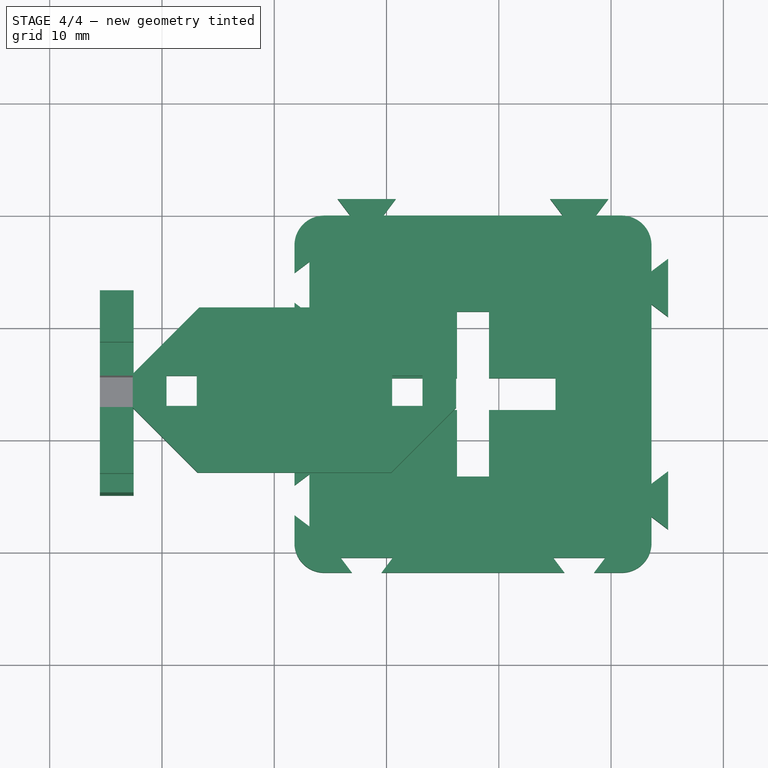
[diagram: stage 4 of 4 — top view after this stage's code; geometry added in this stage tinted green]
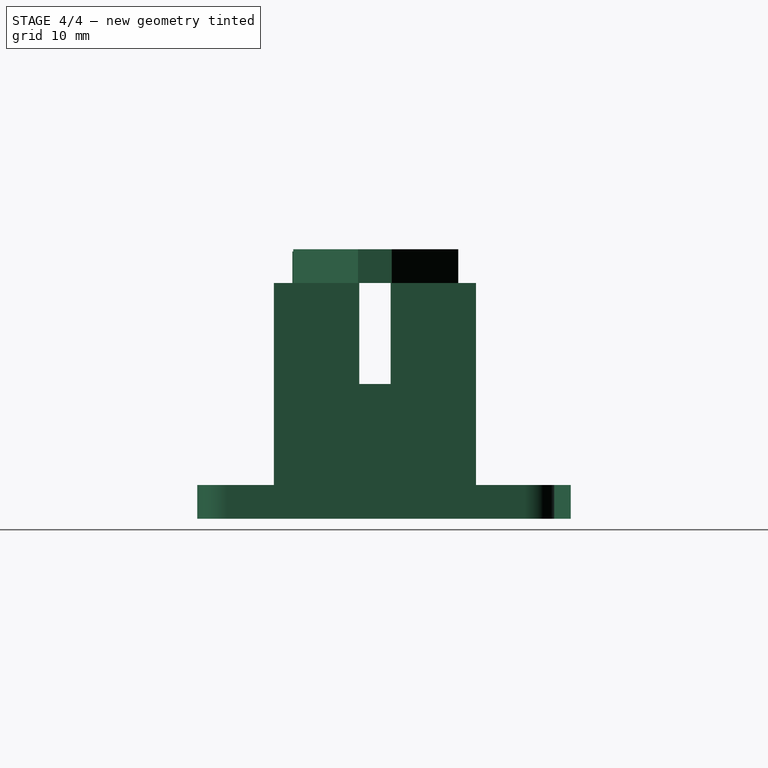
[diagram: stage 4 of 4 — right view after this stage's code; geometry added in this stage tinted green]
FEATURE [PartDesign::Body] Body001  label="Stamp_Back"
  AutoGroupSolids = false
  ClaimAllChildren = false
  ExportMode = 0
  Group = -> [Binder,Sketch002,Pad001,Fillet001,Sketch003,Pocket001]
  Origin = -> Origin001
  Tip = -> Pocket001
  TreeRank = 0
  _ExportChildren = -> [Binder,Pad001,Fillet001,Pocket001]
  _GroupVersion = 1
FEATURE [Part::Part2DObjectPython] Shape2DView001  # Draft 2D object (typed FeaturePython)
  Base = -> Body001
  FuseArch = false
  HiddenLines = false
  InPlace = true
  Projection = (0,0,1)
  ProjectionMode = 0
  SegmentLength = 0.05
  Tessellation = false
  TreeRank = 0
  VisibleOnly = false
FEATURE [Part::FeaturePython] Clone  label="Stamp_Back_002"  # Draft clone (typed FeaturePython)
  AttacherType = Attacher::AttachEngine3D
  Fuse = false
  Objects = -> [Body001]
  Placement = pos=(31.8,0,0) rot=(0,0,1;0rad)
  Scale = (1,1,1)
  TreeRank = 0
  expr: Placement.Base.x = Spreadsheet.stamp_size
FEATURE [PartDesign::Body] Body002  label="Handle_001"
  AutoGroupSolids = false
  ClaimAllChildren = false
  ExportMode = 0
  Group = -> [Binder001,Sketch004,Pad002]
  Origin = -> Origin002
  Tip = -> Pad002
  TreeRank = 0
  _ExportChildren = -> [Binder001,Pad002]
  _GroupVersion = 1
FEATURE [Part::FeaturePython] Clone001  label="Handle_002"  # Draft clone (typed FeaturePython)
  AttacherType = Attacher::AttachEngine3D
  Fuse = false
  Objects = -> [Body002]
  Placement = pos=(0,-0.07,30) rot=(0.707107,-0.707107,0;3.14159rad)
  Scale = (1,1,1)
  TreeRank = 0
FEATURE [PartDesign::SubShapeBinder] Binder002
  BindCopyOnChange = 0
  BindMode = 0
  ClaimChildren = false
  Context = -> Body003 [Binder002.]
  FillStyle = 0
  Fuse = false
  MakeFace = true
  OffsetFill = false
  OffsetIntersection = false
  OffsetJoinType = 0
  OffsetOpenResult = false
  PartialLoad = false
  Refine = true
  Relative = true
  Support = -> [Body002]
  TreeRank = 0
  _Version = 2
FEATURE [PartDesign::SubShapeBinder] Binder003
  BindCopyOnChange = 0
  BindMode = 0
  ClaimChildren = false
  Context = -> Body003 [Binder003.]
  FillStyle = 0
  Fuse = false
  MakeFace = true
  OffsetFill = false
  OffsetIntersection = false
  OffsetJoinType = 0
  OffsetOpenResult = false
  PartialLoad = false
  Refine = true
  Relative = true
  Support = -> [Body001]
  TreeRank = 0
  _Version = 2
FEATURE [PartDesign::SubShapeBinder] Binder004
  BindCopyOnChange = 0
  BindMode = 0
  ClaimChildren = false
  Context = -> Body003 [Binder004.]
  FillStyle = 0
  Fuse = false
  MakeFace = true
  OffsetFill = false
  OffsetIntersection = false
  OffsetJoinType = 0
  OffsetOpenResult = false
  PartialLoad = false
  Refine = true
  Relative = true
  Support = -> [Clone]
  TreeRank = 0
  _Version = 2
FEATURE [Sketcher::SketchObject] Sketch005
  ArcFitTolerance = 0
  AttachmentSupport = -> [Binder002]
  ExternalGeometry = -> [Binder003,Binder002]
  FullyConstrained = true
  MapMode = 5
  Placement = pos=(0,5.3e-15,24) rot=(0,0,1;0rad)
  Support = -> [Binder002]
  TreeRank = 0
  expr: Constraints[19] = Spreadsheet.acrylic_thickness * 3 + Spreadsheet.slot_width * 2
  expr: Constraints[55] = Spreadsheet.laser_kerf
  sketch-geometry (26):
    g0: LineSegment StartX=31.8 StartY=-8.55 StartZ=0 EndX=23.325 EndY=-8.55 EndZ=0
    g1: LineSegment StartX=23.175 StartY=-23.25 StartZ=0 EndX=31.8 EndY=-23.25 EndZ=0
    g2: LineSegment StartX=31.8 StartY=-8.55 StartZ=0 EndX=40.275 EndY=-8.55 EndZ=0
    g3: LineSegment StartX=46.2 StartY=-14.475 StartZ=0 EndX=46.2 EndY=-17.475 EndZ=0
    g4: LineSegment StartX=40.425 StartY=-23.25 StartZ=0 EndX=31.8 EndY=-23.25 EndZ=0
    g5: LineSegment StartX=17.4 StartY=-17.475 StartZ=0 EndX=23.175 EndY=-23.25 EndZ=0
    g6: LineSegment StartX=17.4 StartY=-14.475 StartZ=0 EndX=23.325 EndY=-8.55 EndZ=0
    g7: LineSegment StartX=40.275 StartY=-8.55 StartZ=0 EndX=46.2 EndY=-14.475 EndZ=0
    g8: LineSegment StartX=46.2 StartY=-17.475 StartZ=0 EndX=40.425 EndY=-23.25 EndZ=0
    g9: LineSegment [constr] StartX=31.8 StartY=-7.91071 StartZ=0 EndX=31.8 EndY=-8.55 EndZ=0
    g10: LineSegment [constr] StartX=31.8 StartY=-23.8893 StartZ=0 EndX=31.8 EndY=-23.25 EndZ=0
    g11: LineSegment [constr] StartX=23.1 StartY=-15.975 StartZ=0 EndX=31.8 EndY=-15.975 EndZ=0
    g12: LineSegment [constr] StartX=31.8 StartY=-15.975 StartZ=0 EndX=40.5 EndY=-15.975 EndZ=0
    g13: LineSegment StartX=20.4 StartY=-14.625 StartZ=0 EndX=23.1 EndY=-14.625 EndZ=0
    g14: LineSegment StartX=23.1 StartY=-14.625 StartZ=0 EndX=23.1 EndY=-17.325 EndZ=0
    g15: LineSegment StartX=23.1 StartY=-17.325 StartZ=0 EndX=20.4 EndY=-17.325 EndZ=0
    g16: LineSegment StartX=20.4 StartY=-17.325 StartZ=0 EndX=20.4 EndY=-14.625 EndZ=0
    g17: LineSegment [constr] StartX=20.4 StartY=-14.625 StartZ=0 EndX=20.25 EndY=-14.625 EndZ=0
    g18: LineSegment [constr] StartX=20.4 StartY=-14.625 StartZ=0 EndX=20.4 EndY=-14.475 EndZ=0
    g19: LineSegment [constr] StartX=23.1 StartY=-17.325 StartZ=0 EndX=23.25 EndY=-17.325 EndZ=0
    g20: LineSegment [constr] StartX=23.1 StartY=-17.325 StartZ=0 EndX=23.1 EndY=-17.475 EndZ=0
    g21: LineSegment StartX=40.5 StartY=-14.625 StartZ=0 EndX=43.2 EndY=-14.625 EndZ=0
    g22: LineSegment StartX=43.2 StartY=-14.625 StartZ=0 EndX=43.2 EndY=-17.325 EndZ=0
    g23: LineSegment StartX=43.2 StartY=-17.325 StartZ=0 EndX=40.5 EndY=-17.325 EndZ=0
    g24: LineSegment StartX=40.5 StartY=-17.325 StartZ=0 EndX=40.5 EndY=-14.625 EndZ=0
    g25: LineSegment StartX=17.4 StartY=-14.475 StartZ=0 EndX=17.4 EndY=-17.475 EndZ=0
  constraints (73):
    c: Horizontal(g0)
    c: Horizontal(g1)
    c: Coincident(g2,g0)
    c: Horizontal(g2)
    c: Vertical(g3)
    c: Coincident(g4,g1)
    c: Horizontal(g4)
    c: Coincident(g0,g6)
    c: Coincident(g1,g5)
    c: Angle(g1,g5) = 2.35619
    c: Angle(g6,g0) = 2.35619
    c: Coincident(g4,g8)
    c: Coincident(g3,g8)
    c: Coincident(g3,g7)
    c: Coincident(g2,g7)
    c: Equal(g7,g6)
    c: Equal(g8,g5)
    c: Equal(g0,g2)
    c: Equal(g4,g1)
    c: DistanceY(g1,g0) = 14.7
    c: Coincident(g9,g-3)
    c: Coincident(g9,g0)
    c: Vertical(g9)
    c: Coincident(g10,g-3)
    c: Coincident(g10,g1)
    c: Vertical(g10)
    c: Equal(g10,g9)
    c: PointOnObject(g11,g-3)
    c: Horizontal(g11)
    c: Coincident(g12,g11)
    c: Horizontal(g12)
    c: Equal(g12,g11)
    c: Coincident(g13,g14)
    c: Coincident(g14,g15)
    c: Coincident(g15,g16)
    c: Coincident(g16,g13)
    c: Horizontal(g13)
    c: Horizontal(g15)
    c: Vertical(g14)
    c: Vertical(g16)
    c: Coincident(g17,g13)
    c: PointOnObject(g17,g-5)
    c: Horizontal(g17)
    c: Coincident(g18,g13)
    c: PointOnObject(g18,g-6)
    c: Vertical(g18)
    c: Equal(g18,g17)
    c: Coincident(g19,g14)
    c: PointOnObject(g19,g-4)
    c: Horizontal(g19)
    c: Coincident(g20,g14)
    c: PointOnObject(g20,g-7)
    c: Vertical(g20)
    c: Equal(g20,g19)
    c: Equal(g20,g18)
    c: DistanceX(g17,g17) = 0.15
    c: Symmetric(g13,g14,g11)
    c: Coincident(g21,g22)
    c: Coincident(g22,g23)
    c: Coincident(g23,g24)
    c: Coincident(g24,g21)
    c: Horizontal(g21)
    c: Horizontal(g23)
    c: Vertical(g22)
    c: Vertical(g24)
    c: Symmetric(g21,g23,g12)
    c: Equal(g24,g14)
    c: Equal(g13,g21)
    c: Coincident(g5,g-8)
    c: Coincident(g6,g-8)
    c: Coincident(g25,g6)
    c: Coincident(g25,g5)
    c: Equal(g3,g25)
FEATURE [PartDesign::Pad] Pad003
  ClaimChildren = false
  Direction = (1,1,1)
  Fit = 0
  FitJoin = 0
  InnerFit = 0
  InnerFitJoin = 0
  InnerTaperAngle = 0
  InnerTaperAngleRev = 0
  Length = 3
  Length2 = 100
  NewSolid = false
  Profile = -> Sketch005
  Suppress = false
  TreeRank = 0
  Type = 0
  _ProfileBasedVersion = 0
FEATURE [PartDesign::Body] Body003  label="Coupler"
  AutoGroupSolids = false
  ClaimAllChildren = false
  ExportMode = 0
  Group = -> [Binder002,Binder003,Binder004,Sketch005,Pad003]
  Origin = -> Origin003
  Tip = -> Pad003
  TreeRank = 0
  _ExportChildren = -> [Binder002,Binder003,Binder004,Pad003]
  _GroupVersion = 1
FEATURE [Part::Part2DObjectPython] Shape2DView002  # Draft 2D object (typed FeaturePython)
  Base = -> Body002
  FuseArch = false
  HiddenLines = false
  InPlace = true
  Projection = (0,-1,-1.68587e-07)
  ProjectionMode = 0
  SegmentLength = 0.05
  Tessellation = false
  TreeRank = 0
  VisibleOnly = false
FEATURE [Part::Part2DObjectPython] Shape2DView003  # Draft 2D object (typed FeaturePython)
  Base = -> Body003
  FuseArch = false
  HiddenLines = false
  InPlace = true
  Projection = (0,0,1)
  ProjectionMode = 0
  SegmentLength = 0.05
  Tessellation = false
  TreeRank = 0
  VisibleOnly = false
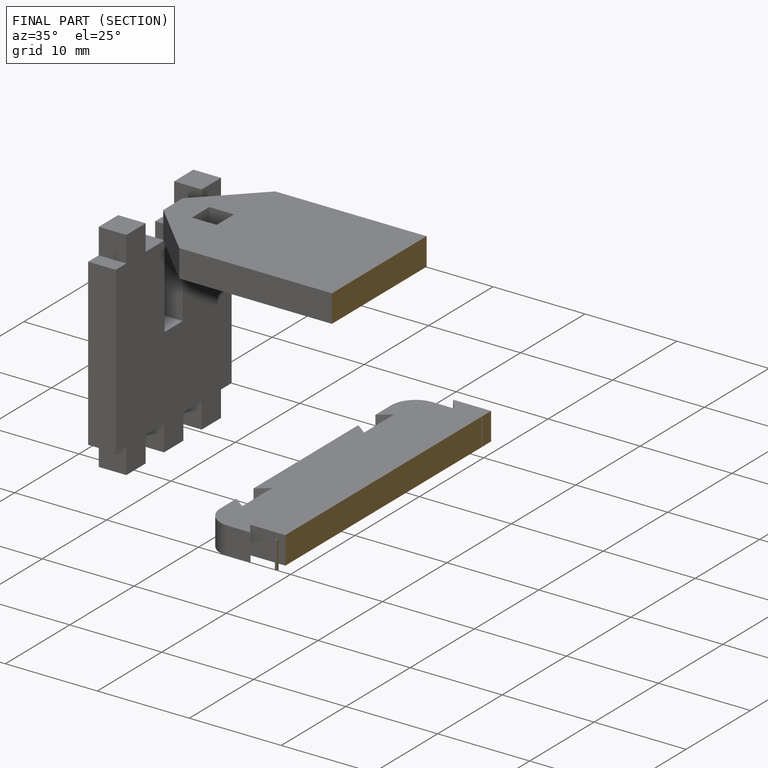
[diagram: finished part — half-section view (interior)]
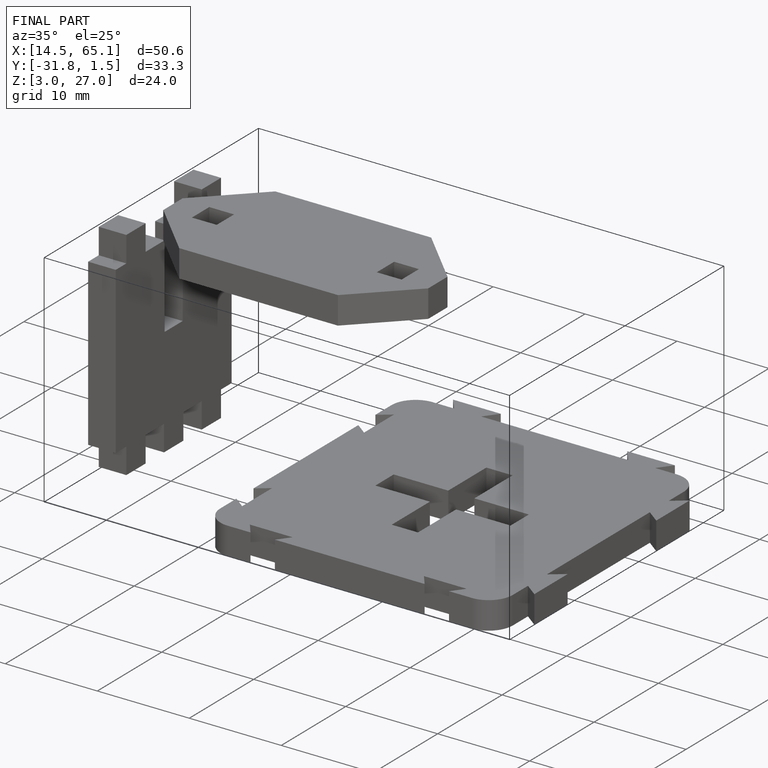
[diagram: finished part — iso view with bounding-box wireframe]
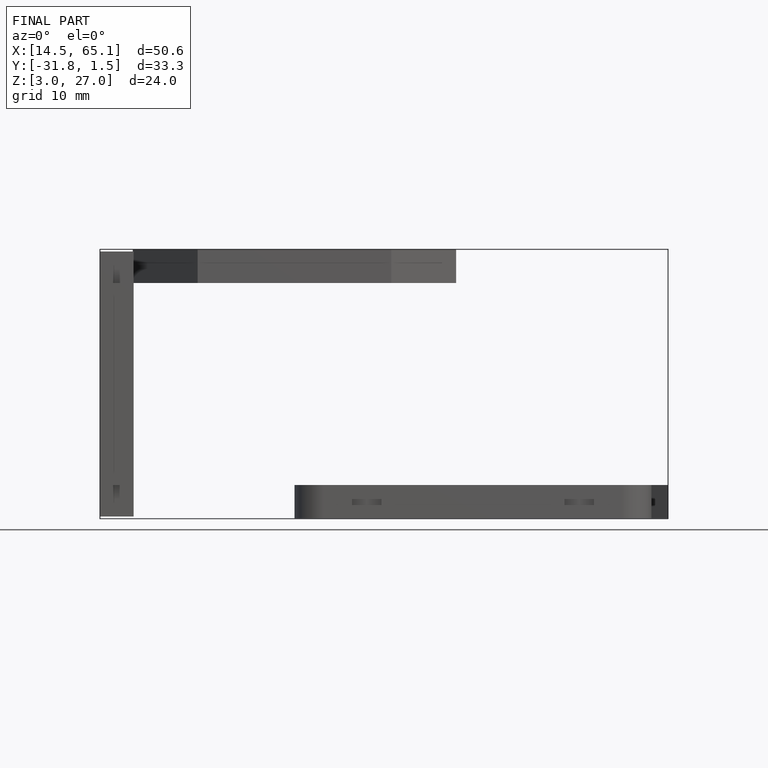
[diagram: finished part — front view with bounding-box wireframe]
